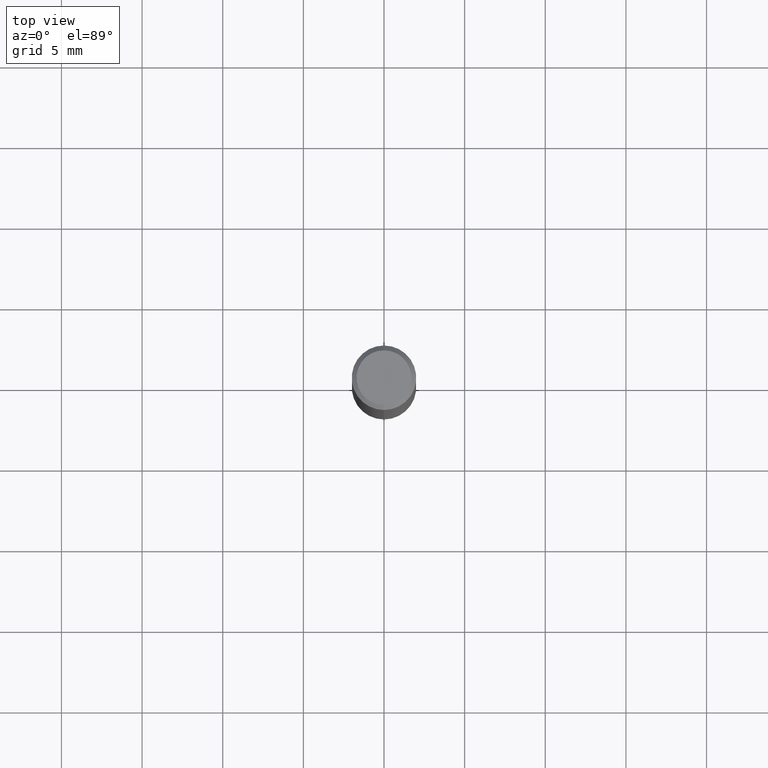
[diagram: clean part render]
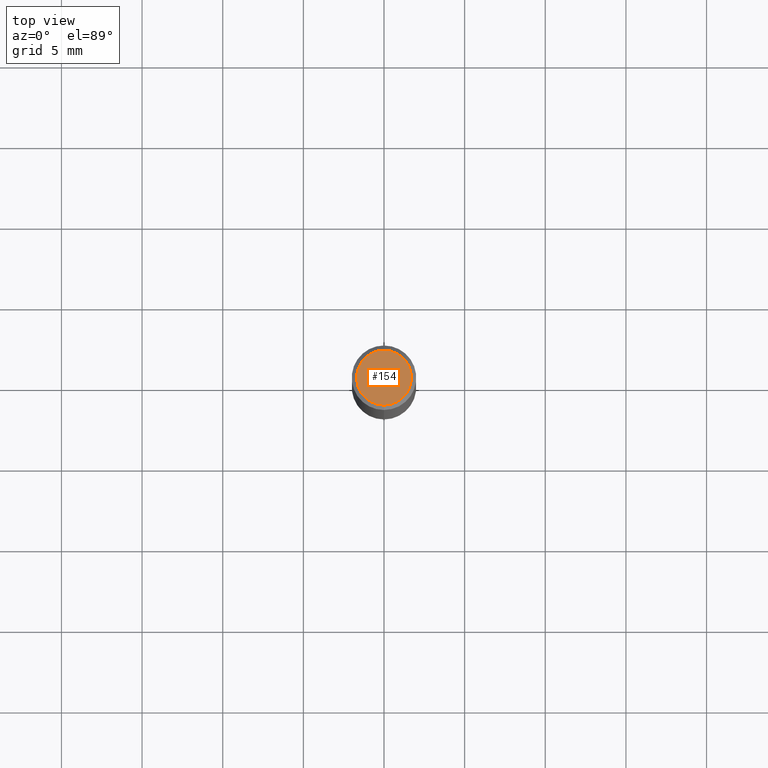
[diagram: same view with one face highlighted and labeled with its STEP entity id]
A machine part, top view. The second image highlights one B-rep face of the part: STEP entity #154.
In plain terms, the highlighted planar face has unit normal (-0, 0, 1).
Its self-contained STEP definition (entity closure, byte-faithful):
#106=VERTEX_POINT('',#247);
#154=ADVANCED_FACE('',(#301),#302,.T.);
#158=EDGE_CURVE('',#174,#106,#307,.T.);
#168=EDGE_CURVE('',#106,#174,#318,.T.);
#174=VERTEX_POINT('',#326);
#247=CARTESIAN_POINT('',(0.0,1.7,0.0));
#301=FACE_OUTER_BOUND('',#469,.T.);
#302=PLANE('',#470);
#307=CIRCLE('',#476,1.7);
#318=CIRCLE('',#490,1.7);
#326=CARTESIAN_POINT('',(2.08183080149804E-016,-1.7,0.0));
#469=EDGE_LOOP('',(#642,#643));
#470=AXIS2_PLACEMENT_3D('',#644,#645,#646);
#476=AXIS2_PLACEMENT_3D('',#653,#654,#655);
#490=AXIS2_PLACEMENT_3D('',#665,#666,#667);
#642=ORIENTED_EDGE('',*,*,#168,.F.);
#643=ORIENTED_EDGE('',*,*,#158,.F.);
#644=CARTESIAN_POINT('',(0.0,0.85,0.0));
#645=DIRECTION('',(-0.0,0.0,1.0));
#646=DIRECTION('',(0.0,-1.0,0.0));
#653=CARTESIAN_POINT('',(0.0,0.0,0.0));
#654=DIRECTION('',(0.0,0.0,-1.0));
#655=DIRECTION('',(0.0,1.0,0.0));
#665=CARTESIAN_POINT('',(0.0,0.0,0.0));
#666=DIRECTION('',(0.0,0.0,-1.0));
#667=DIRECTION('',(0.0,1.0,0.0));